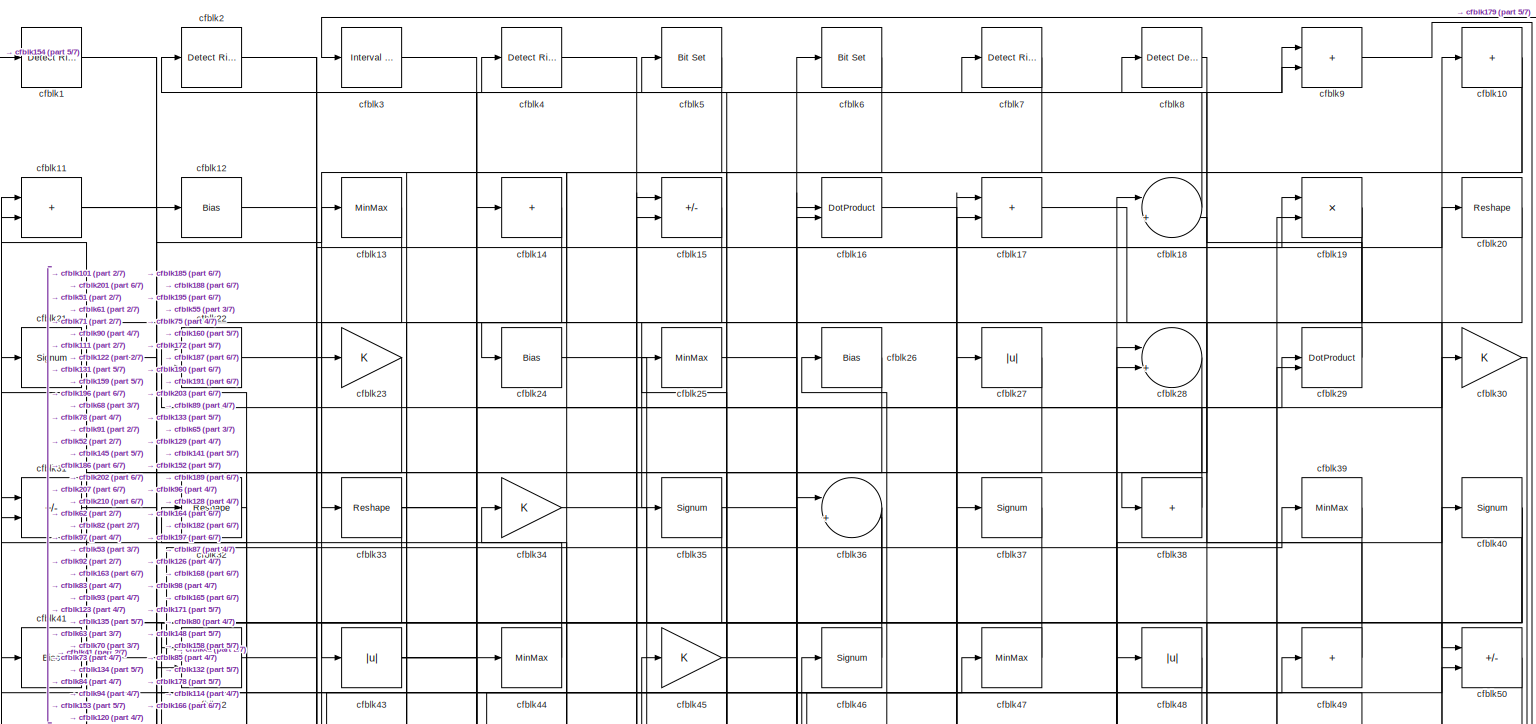
[diagram: root canvas - part 1/7, full width, top band]
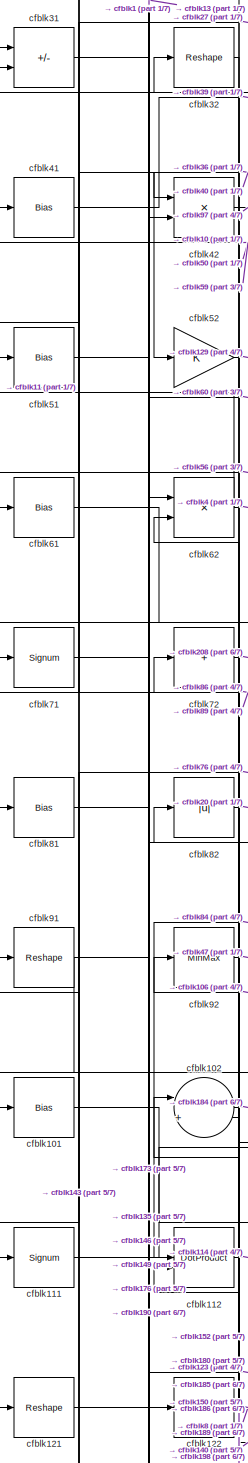
[diagram: root canvas - part 2/7, middle left region]
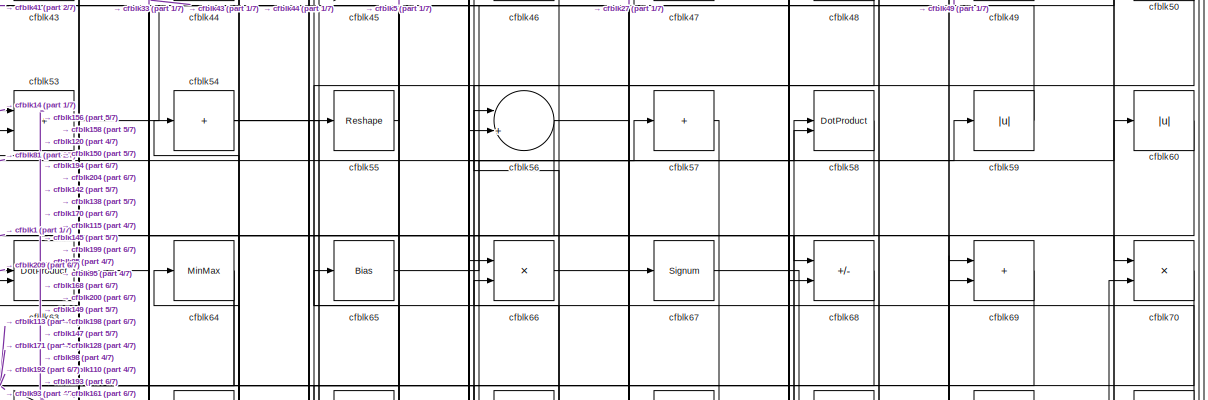
[diagram: root canvas - part 3/7, full width, top band]
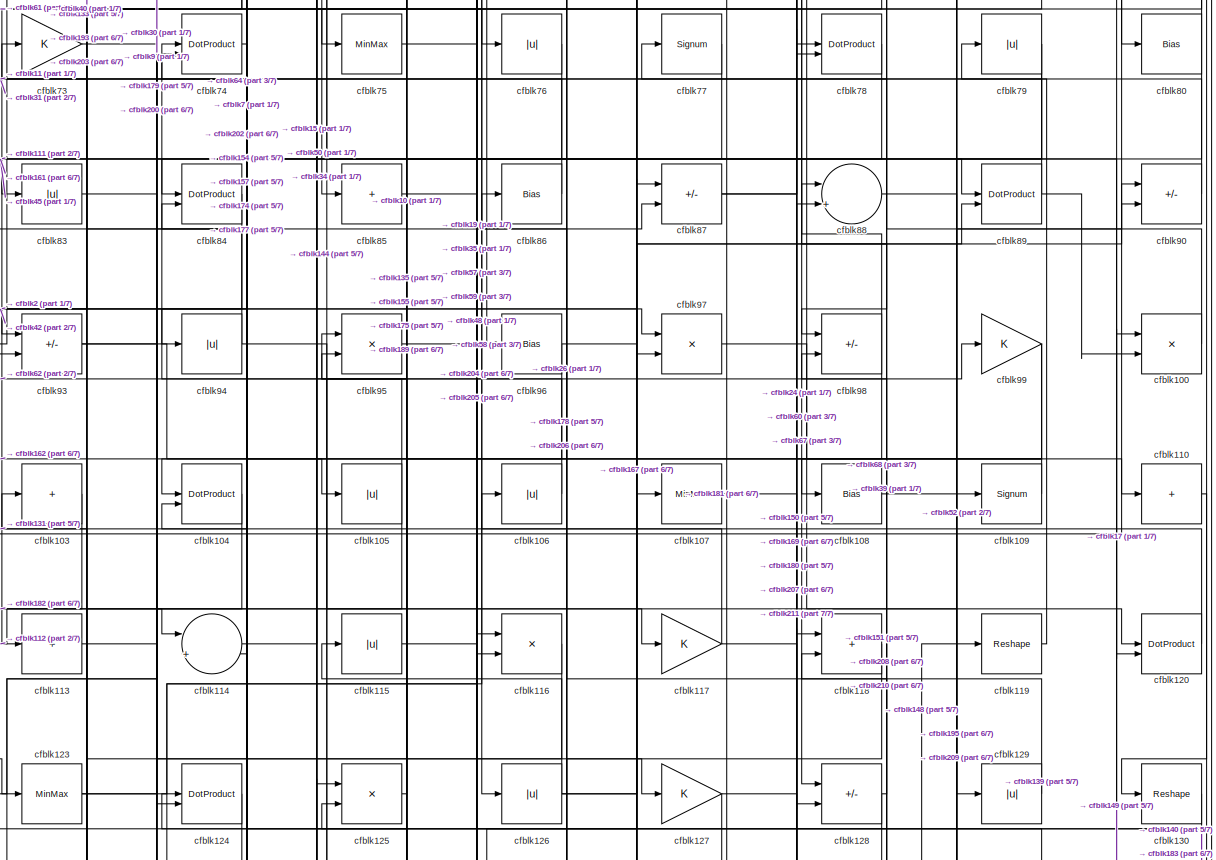
[diagram: root canvas - part 4/7, full width, middle band]
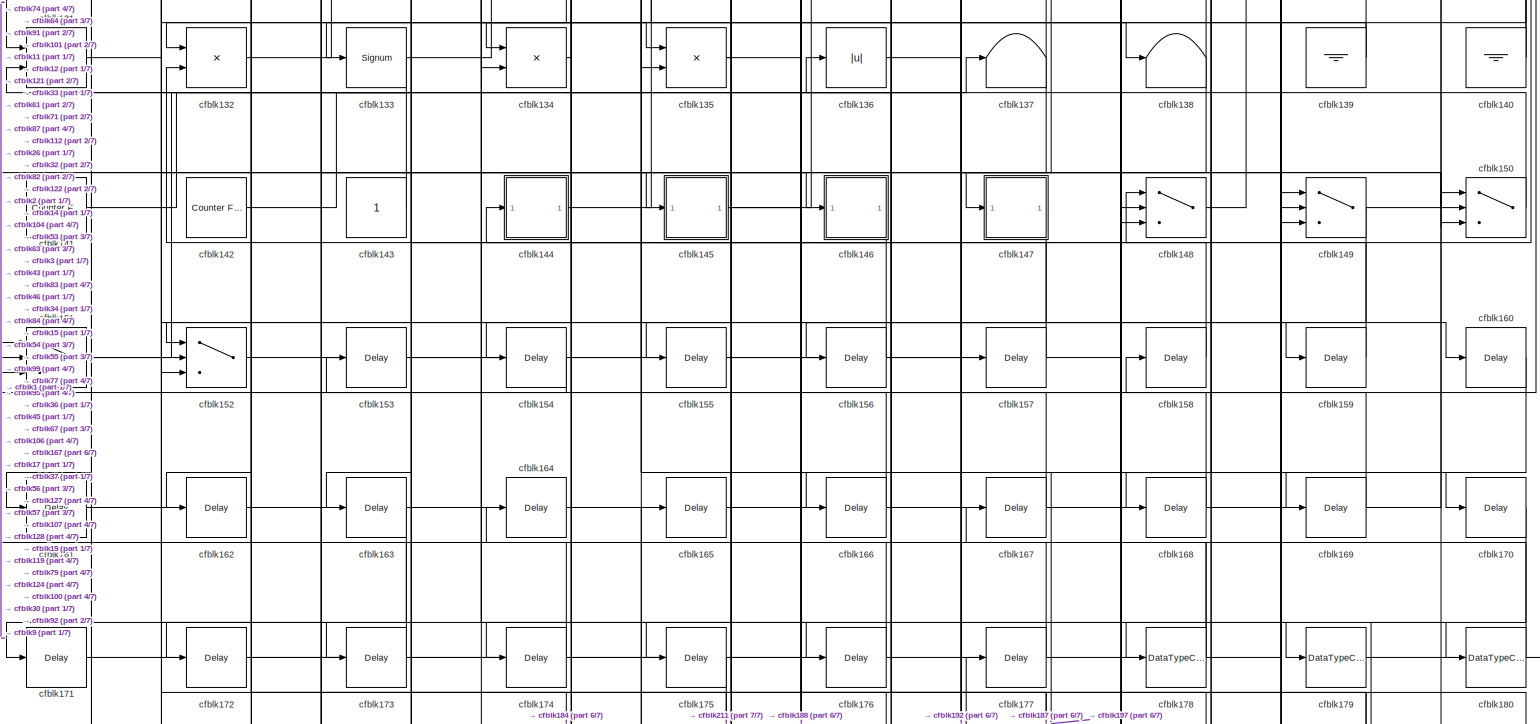
[diagram: root canvas - part 5/7, full width, bottom band]
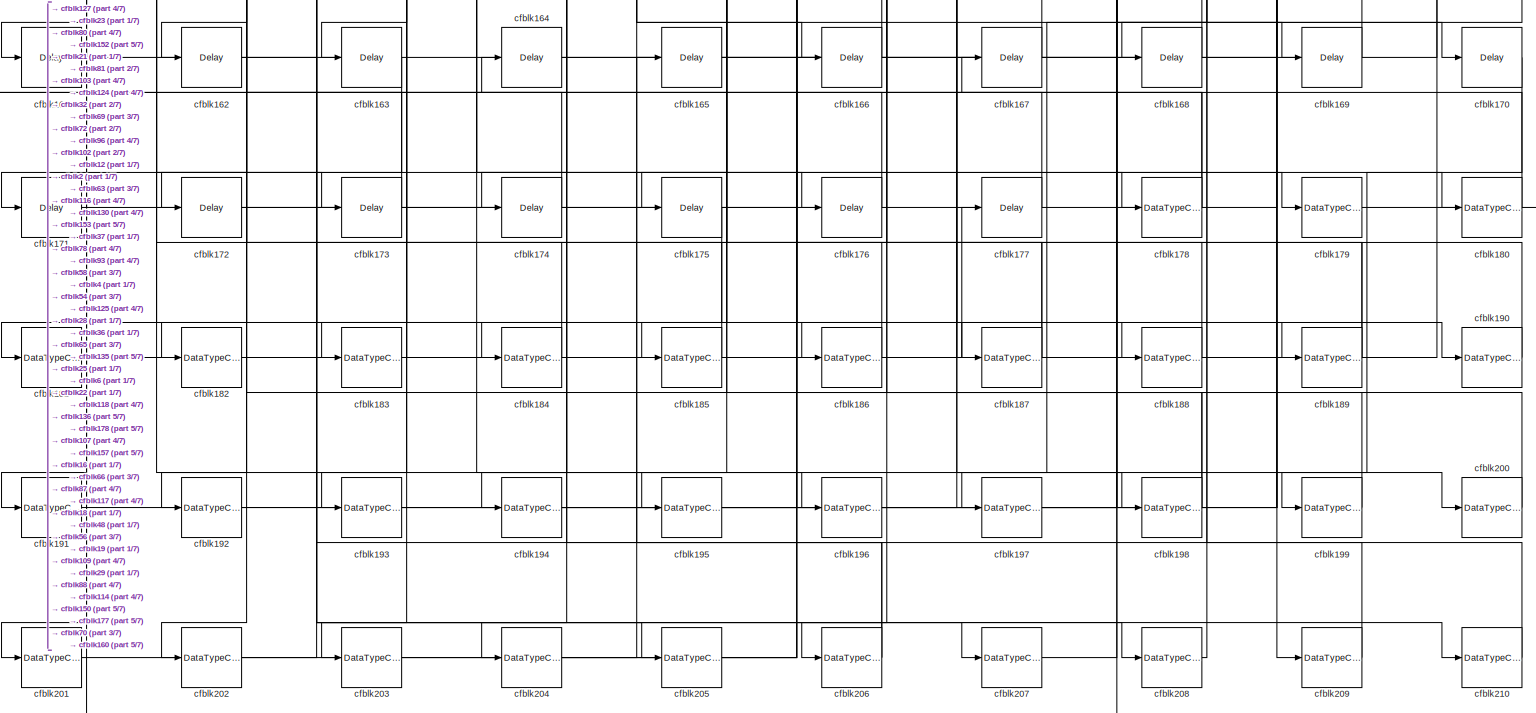
[diagram: root canvas - part 6/7, full width, bottom band]
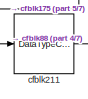
[diagram: root canvas - part 7/7, bottom left region]
MODEL slx_3db3fa56d1fc
KIND model
CONFIG AbsTol = auto
CONFIG EnableMultiTasking = off
CONFIG FixedStep = auto
CONFIG MaxStep = auto
CONFIG MinStep = auto
CONFIG RelTol = 1e-3
CONFIG SampleTimeConstraint = Unconstrained
CONFIG SolverName = VariableStepAuto
CONFIG StartTime = 0.0
CONFIG StopTime = 10.0
BLOCK [Reference] cfblk1  REF=hdlsllib/Logic and Bit
Operations/Detect Rise
Positive
  SourceBlock = hdlsllib/Logic and Bit\nOperations/Detect Rise\nPositive
  SourceType = Detect Rise Positive
BLOCK [Sum] cfblk10
  IconShape = rectangular
  Inputs = +
BLOCK [Product] cfblk100
  Inputs = */
  RndMeth = Zero
  SaturateOnIntegerOverflow = on
BLOCK [Bias] cfblk101
  Bias = 0.0
  SaturateOnIntegerOverflow = off
BLOCK [Sum] cfblk102
  Inputs = |++
BLOCK [Sum] cfblk103
  IconShape = rectangular
  Inputs = +
BLOCK [DotProduct] cfblk104
  OutDataTypeStr = Inherit: Inherit via internal rule
BLOCK [Abs] cfblk105
  SaturateOnIntegerOverflow = off
BLOCK [Abs] cfblk106
  SaturateOnIntegerOverflow = off
BLOCK [MinMax] cfblk107
BLOCK [Bias] cfblk108
  Bias = 0.0
  SaturateOnIntegerOverflow = off
BLOCK [Signum] cfblk109
BLOCK [Sum] cfblk11
  IconShape = rectangular
BLOCK [Sum] cfblk110
  IconShape = rectangular
  Inputs = +
BLOCK [Signum] cfblk111
BLOCK [DotProduct] cfblk112
  OutDataTypeStr = Inherit: Inherit via internal rule
BLOCK [Sum] cfblk113
  IconShape = rectangular
  Inputs = +
BLOCK [Sum] cfblk114
  Inputs = |++
BLOCK [Abs] cfblk115
  SaturateOnIntegerOverflow = off
BLOCK [Product] cfblk116
  Inputs = */
  RndMeth = Zero
  SaturateOnIntegerOverflow = on
BLOCK [Gain] cfblk117
BLOCK [Sum] cfblk118
  IconShape = rectangular
BLOCK [Reshape] cfblk119
BLOCK [Bias] cfblk12
  Bias = 0.0
  SaturateOnIntegerOverflow = off
BLOCK [DotProduct] cfblk120
  OutDataTypeStr = Inherit: Inherit via internal rule
BLOCK [Reshape] cfblk121
BLOCK [Sum] cfblk122
  IconShape = rectangular
  Inputs = +
BLOCK [MinMax] cfblk123
BLOCK [DotProduct] cfblk124
  OutDataTypeStr = Inherit: Inherit via internal rule
BLOCK [Product] cfblk125
  Inputs = */
  RndMeth = Zero
  SaturateOnIntegerOverflow = on
BLOCK [Abs] cfblk126
  SaturateOnIntegerOverflow = off
BLOCK [Gain] cfblk127
BLOCK [Sum] cfblk128
  IconShape = rectangular
  Inputs = +-
BLOCK [Abs] cfblk129
  SaturateOnIntegerOverflow = off
BLOCK [MinMax] cfblk13
BLOCK [Reshape] cfblk130
BLOCK [Sum] cfblk131
  IconShape = rectangular
BLOCK [Product] cfblk132
  Inputs = */
  RndMeth = Zero
  SaturateOnIntegerOverflow = on
BLOCK [Signum] cfblk133
BLOCK [Product] cfblk134
  Inputs = */
  RndMeth = Zero
  SaturateOnIntegerOverflow = on
BLOCK [Product] cfblk135
  Inputs = */
  RndMeth = Zero
  SaturateOnIntegerOverflow = on
BLOCK [Abs] cfblk136
  SaturateOnIntegerOverflow = off
BLOCK [Terminator] cfblk137
BLOCK [Terminator] cfblk138
BLOCK [Ground] cfblk139
BLOCK [Sum] cfblk14
  IconShape = rectangular
  Inputs = +
BLOCK [Ground] cfblk140
BLOCK [Reference] cfblk141  REF=hdlsllib/Sources/Counter
Free-Running
  SourceBlock = hdlsllib/Sources/Counter\nFree-Running
  SourceType = Counter Free-Running
BLOCK [Reference] cfblk142  REF=hdlsllib/Sources/Counter
Free-Running
  SourceBlock = hdlsllib/Sources/Counter\nFree-Running
  SourceType = Counter Free-Running
BLOCK [Constant] cfblk143
  SampleTime = -1
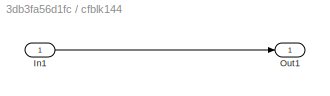
BLOCK [SubSystem] cfblk144
  LibrarySourceBlock = hdlsllib/Ports &\nSubsystems/Subsystem
BLOCK [Inport] cfblk144/In1
BLOCK [Outport] cfblk144/Out1
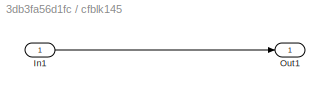
BLOCK [SubSystem] cfblk145
  LibrarySourceBlock = hdlsllib/Ports &\nSubsystems/Subsystem
BLOCK [Inport] cfblk145/In1
BLOCK [Outport] cfblk145/Out1
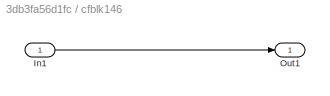
BLOCK [SubSystem] cfblk146
  LibrarySourceBlock = hdlsllib/Ports &\nSubsystems/Subsystem
BLOCK [Inport] cfblk146/In1
BLOCK [Outport] cfblk146/Out1
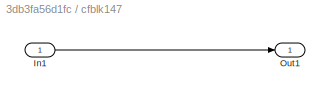
BLOCK [SubSystem] cfblk147
  LibrarySourceBlock = hdlsllib/Ports &\nSubsystems/Subsystem
BLOCK [Inport] cfblk147/In1
BLOCK [Outport] cfblk147/Out1
BLOCK [Switch] cfblk148
  InputSameDT = off
  SaturateOnIntegerOverflow = off
BLOCK [Switch] cfblk149
  InputSameDT = off
  SaturateOnIntegerOverflow = off
BLOCK [Sum] cfblk15
  IconShape = rectangular
  Inputs = +-
BLOCK [Switch] cfblk150
  InputSameDT = off
  SaturateOnIntegerOverflow = off
BLOCK [Switch] cfblk151
  InputSameDT = off
  SaturateOnIntegerOverflow = off
BLOCK [Switch] cfblk152
  InputSameDT = off
  SaturateOnIntegerOverflow = off
BLOCK [Delay] cfblk153
  InputPortMap = u0
  SampleTime = 1
BLOCK [Delay] cfblk154
  InputPortMap = u0
  SampleTime = 1
BLOCK [Delay] cfblk155
  InputPortMap = u0
  SampleTime = 1
BLOCK [Delay] cfblk156
  InputPortMap = u0
  SampleTime = 1
BLOCK [Delay] cfblk157
  InputPortMap = u0
  SampleTime = 1
BLOCK [Delay] cfblk158
  InputPortMap = u0
  SampleTime = 1
BLOCK [Delay] cfblk159
  InputPortMap = u0
  SampleTime = 1
BLOCK [DotProduct] cfblk16
  OutDataTypeStr = Inherit: Inherit via internal rule
BLOCK [Delay] cfblk160
  InputPortMap = u0
  SampleTime = 1
BLOCK [Delay] cfblk161
  InputPortMap = u0
  SampleTime = 1
BLOCK [Delay] cfblk162
  InputPortMap = u0
  SampleTime = 1
BLOCK [Delay] cfblk163
  InputPortMap = u0
  SampleTime = 1
BLOCK [Delay] cfblk164
  InputPortMap = u0
  SampleTime = 1
BLOCK [Delay] cfblk165
  InputPortMap = u0
  SampleTime = 1
BLOCK [Delay] cfblk166
  InputPortMap = u0
  SampleTime = 1
BLOCK [Delay] cfblk167
  InputPortMap = u0
  SampleTime = 1
BLOCK [Delay] cfblk168
  InputPortMap = u0
  SampleTime = 1
BLOCK [Delay] cfblk169
  InputPortMap = u0
  SampleTime = 1
BLOCK [Sum] cfblk17
  IconShape = rectangular
BLOCK [Delay] cfblk170
  InputPortMap = u0
  SampleTime = 1
BLOCK [Delay] cfblk171
  InputPortMap = u0
  SampleTime = 1
BLOCK [Delay] cfblk172
  InputPortMap = u0
  SampleTime = 1
BLOCK [Delay] cfblk173
  InputPortMap = u0
  SampleTime = 1
BLOCK [Delay] cfblk174
  InputPortMap = u0
  SampleTime = 1
BLOCK [Delay] cfblk175
  InputPortMap = u0
  SampleTime = 1
BLOCK [Delay] cfblk176
  InputPortMap = u0
  SampleTime = 1
BLOCK [Delay] cfblk177
  InputPortMap = u0
  SampleTime = 1
BLOCK [DataTypeConversion] cfblk178
  RndMeth = Floor
  SaturateOnIntegerOverflow = off
BLOCK [DataTypeConversion] cfblk179
  OutDataTypeStr = uint8
  RndMeth = Floor
  SaturateOnIntegerOverflow = off
BLOCK [Sum] cfblk18
  Inputs = |++
BLOCK [DataTypeConversion] cfblk180
  OutDataTypeStr = uint8
  RndMeth = Floor
  SaturateOnIntegerOverflow = off
BLOCK [DataTypeConversion] cfblk181
  OutDataTypeStr = uint8
  RndMeth = Floor
  SaturateOnIntegerOverflow = off
BLOCK [DataTypeConversion] cfblk182
  OutDataTypeStr = uint8
  RndMeth = Floor
  SaturateOnIntegerOverflow = off
BLOCK [DataTypeConversion] cfblk183
  OutDataTypeStr = uint8
  RndMeth = Floor
  SaturateOnIntegerOverflow = off
BLOCK [DataTypeConversion] cfblk184
  RndMeth = Floor
  SaturateOnIntegerOverflow = off
BLOCK [DataTypeConversion] cfblk185
  OutDataTypeStr = uint8
  RndMeth = Floor
  SaturateOnIntegerOverflow = off
BLOCK [DataTypeConversion] cfblk186
  OutDataTypeStr = uint8
  RndMeth = Floor
  SaturateOnIntegerOverflow = off
BLOCK [DataTypeConversion] cfblk187
  RndMeth = Floor
  SaturateOnIntegerOverflow = off
BLOCK [DataTypeConversion] cfblk188
  OutDataTypeStr = uint8
  RndMeth = Floor
  SaturateOnIntegerOverflow = off
BLOCK [DataTypeConversion] cfblk189
  RndMeth = Floor
  SaturateOnIntegerOverflow = off
BLOCK [Product] cfblk19
  Inputs = */
  RndMeth = Zero
  SaturateOnIntegerOverflow = on
BLOCK [DataTypeConversion] cfblk190
  OutDataTypeStr = uint8
  RndMeth = Floor
  SaturateOnIntegerOverflow = off
BLOCK [DataTypeConversion] cfblk191
  OutDataTypeStr = uint8
  RndMeth = Floor
  SaturateOnIntegerOverflow = off
BLOCK [DataTypeConversion] cfblk192
  OutDataTypeStr = uint8
  RndMeth = Floor
  SaturateOnIntegerOverflow = off
BLOCK [DataTypeConversion] cfblk193
  OutDataTypeStr = uint8
  RndMeth = Floor
  SaturateOnIntegerOverflow = off
BLOCK [DataTypeConversion] cfblk194
  OutDataTypeStr = uint8
  RndMeth = Floor
  SaturateOnIntegerOverflow = off
BLOCK [DataTypeConversion] cfblk195
  OutDataTypeStr = uint8
  RndMeth = Floor
  SaturateOnIntegerOverflow = off
BLOCK [DataTypeConversion] cfblk196
  OutDataTypeStr = uint8
  RndMeth = Floor
  SaturateOnIntegerOverflow = off
BLOCK [DataTypeConversion] cfblk197
  OutDataTypeStr = uint8
  RndMeth = Floor
  SaturateOnIntegerOverflow = off
BLOCK [DataTypeConversion] cfblk198
  RndMeth = Floor
  SaturateOnIntegerOverflow = off
BLOCK [DataTypeConversion] cfblk199
  OutDataTypeStr = uint8
  RndMeth = Floor
  SaturateOnIntegerOverflow = off
BLOCK [Reference] cfblk2  REF=hdlsllib/Logic and Bit
Operations/Detect Rise
Positive
  SourceBlock = hdlsllib/Logic and Bit\nOperations/Detect Rise\nPositive
  SourceType = Detect Rise Positive
BLOCK [Reshape] cfblk20
BLOCK [DataTypeConversion] cfblk200
  OutDataTypeStr = uint8
  RndMeth = Floor
  SaturateOnIntegerOverflow = off
BLOCK [DataTypeConversion] cfblk201
  OutDataTypeStr = uint8
  RndMeth = Floor
  SaturateOnIntegerOverflow = off
BLOCK [DataTypeConversion] cfblk202
  OutDataTypeStr = uint8
  RndMeth = Floor
  SaturateOnIntegerOverflow = off
BLOCK [DataTypeConversion] cfblk203
  OutDataTypeStr = uint8
  RndMeth = Floor
  SaturateOnIntegerOverflow = off
BLOCK [DataTypeConversion] cfblk204
  OutDataTypeStr = uint8
  RndMeth = Floor
  SaturateOnIntegerOverflow = off
BLOCK [DataTypeConversion] cfblk205
  OutDataTypeStr = uint8
  RndMeth = Floor
  SaturateOnIntegerOverflow = off
BLOCK [DataTypeConversion] cfblk206
  RndMeth = Floor
  SaturateOnIntegerOverflow = off
BLOCK [DataTypeConversion] cfblk207
  OutDataTypeStr = uint8
  RndMeth = Floor
  SaturateOnIntegerOverflow = off
BLOCK [DataTypeConversion] cfblk208
  OutDataTypeStr = uint8
  RndMeth = Floor
  SaturateOnIntegerOverflow = off
BLOCK [DataTypeConversion] cfblk209
  OutDataTypeStr = uint8
  RndMeth = Floor
  SaturateOnIntegerOverflow = off
BLOCK [Signum] cfblk21
BLOCK [DataTypeConversion] cfblk210
  OutDataTypeStr = uint8
  RndMeth = Floor
  SaturateOnIntegerOverflow = off
BLOCK [DataTypeConversion] cfblk211
  OutDataTypeStr = uint8
  RndMeth = Floor
  SaturateOnIntegerOverflow = off
BLOCK [Product] cfblk22
  Inputs = */
  RndMeth = Zero
  SaturateOnIntegerOverflow = on
BLOCK [Gain] cfblk23
BLOCK [Bias] cfblk24
  Bias = 0.0
  SaturateOnIntegerOverflow = off
BLOCK [MinMax] cfblk25
BLOCK [Bias] cfblk26
  Bias = 0.0
  SaturateOnIntegerOverflow = off
BLOCK [Abs] cfblk27
  SaturateOnIntegerOverflow = off
BLOCK [Sum] cfblk28
  Inputs = |++
BLOCK [DotProduct] cfblk29
  OutDataTypeStr = Inherit: Inherit via internal rule
BLOCK [Reference] cfblk3  REF=hdlsllib/Logic and Bit
Operations/Interval Test
  SourceBlock = hdlsllib/Logic and Bit\nOperations/Interval Test
  SourceType = Interval Test
BLOCK [Gain] cfblk30
BLOCK [Sum] cfblk31
  IconShape = rectangular
  Inputs = +-
BLOCK [Reshape] cfblk32
BLOCK [Reshape] cfblk33
BLOCK [Gain] cfblk34
BLOCK [Signum] cfblk35
BLOCK [Sum] cfblk36
  Inputs = |++
BLOCK [Signum] cfblk37
BLOCK [Sum] cfblk38
  IconShape = rectangular
  Inputs = +
BLOCK [MinMax] cfblk39
BLOCK [Reference] cfblk4  REF=hdlsllib/Logic and Bit
Operations/Detect Rise
Positive
  SourceBlock = hdlsllib/Logic and Bit\nOperations/Detect Rise\nPositive
  SourceType = Detect Rise Positive
BLOCK [Signum] cfblk40
BLOCK [Bias] cfblk41
  Bias = 0.0
  SaturateOnIntegerOverflow = off
BLOCK [Product] cfblk42
  Inputs = */
  RndMeth = Zero
  SaturateOnIntegerOverflow = on
BLOCK [Abs] cfblk43
  SaturateOnIntegerOverflow = off
BLOCK [MinMax] cfblk44
BLOCK [Gain] cfblk45
BLOCK [Signum] cfblk46
BLOCK [MinMax] cfblk47
BLOCK [Abs] cfblk48
  SaturateOnIntegerOverflow = off
BLOCK [Sum] cfblk49
  IconShape = rectangular
  Inputs = +
BLOCK [Reference] cfblk5  REF=simulink/Logic and Bit
Operations/Bit Set
  LibrarySourceBlock = hdlsllib/Logic and Bit\nOperations/Bit Set
  SourceBlock = simulink/Logic and Bit\nOperations/Bit Set
  SourceType = Bit Set
BLOCK [Sum] cfblk50
  IconShape = rectangular
  Inputs = +-
BLOCK [Bias] cfblk51
  Bias = 0.0
  SaturateOnIntegerOverflow = off
BLOCK [Gain] cfblk52
BLOCK [Sum] cfblk53
  IconShape = rectangular
BLOCK [Sum] cfblk54
  IconShape = rectangular
  Inputs = +
BLOCK [Reshape] cfblk55
BLOCK [Sum] cfblk56
  Inputs = |++
BLOCK [Sum] cfblk57
  IconShape = rectangular
  Inputs = +
BLOCK [DotProduct] cfblk58
  OutDataTypeStr = Inherit: Inherit via internal rule
BLOCK [Abs] cfblk59
  SaturateOnIntegerOverflow = off
BLOCK [Reference] cfblk6  REF=simulink/Logic and Bit
Operations/Bit Set
  LibrarySourceBlock = hdlsllib/Logic and Bit\nOperations/Bit Set
  SourceBlock = simulink/Logic and Bit\nOperations/Bit Set
  SourceType = Bit Set
BLOCK [Abs] cfblk60
  SaturateOnIntegerOverflow = off
BLOCK [Bias] cfblk61
  Bias = 0.0
  SaturateOnIntegerOverflow = off
BLOCK [Product] cfblk62
  Inputs = */
  RndMeth = Zero
  SaturateOnIntegerOverflow = on
BLOCK [DotProduct] cfblk63
  OutDataTypeStr = Inherit: Inherit via internal rule
BLOCK [MinMax] cfblk64
BLOCK [Bias] cfblk65
  Bias = 0.0
  SaturateOnIntegerOverflow = off
BLOCK [Product] cfblk66
  Inputs = */
  RndMeth = Zero
  SaturateOnIntegerOverflow = on
BLOCK [Signum] cfblk67
BLOCK [Sum] cfblk68
  IconShape = rectangular
  Inputs = +-
BLOCK [Sum] cfblk69
  IconShape = rectangular
BLOCK [Reference] cfblk7  REF=hdlsllib/Logic and Bit
Operations/Detect Rise
Nonnegative
  SourceBlock = hdlsllib/Logic and Bit\nOperations/Detect Rise\nNonnegative
  SourceType = Detect Rise Nonnegative
BLOCK [Product] cfblk70
  Inputs = */
  RndMeth = Zero
  SaturateOnIntegerOverflow = on
BLOCK [Signum] cfblk71
BLOCK [Sum] cfblk72
  IconShape = rectangular
  Inputs = +
BLOCK [Gain] cfblk73
BLOCK [DotProduct] cfblk74
  OutDataTypeStr = Inherit: Inherit via internal rule
BLOCK [MinMax] cfblk75
BLOCK [Abs] cfblk76
  SaturateOnIntegerOverflow = off
BLOCK [Signum] cfblk77
BLOCK [DotProduct] cfblk78
  OutDataTypeStr = Inherit: Inherit via internal rule
BLOCK [Abs] cfblk79
  SaturateOnIntegerOverflow = off
BLOCK [Reference] cfblk8  REF=simulink/Logic and Bit
Operations/Detect
Decrease
  LibrarySourceBlock = hdlsllib/Logic and Bit\nOperations/Detect\nDecrease
  SourceBlock = simulink/Logic and Bit\nOperations/Detect\nDecrease
  SourceType = Detect Decrease
BLOCK [Bias] cfblk80
  Bias = 0.0
  SaturateOnIntegerOverflow = off
BLOCK [Bias] cfblk81
  Bias = 0.0
  SaturateOnIntegerOverflow = off
BLOCK [Abs] cfblk82
  SaturateOnIntegerOverflow = off
BLOCK [Abs] cfblk83
  SaturateOnIntegerOverflow = off
BLOCK [DotProduct] cfblk84
  OutDataTypeStr = Inherit: Inherit via internal rule
BLOCK [Sum] cfblk85
  IconShape = rectangular
  Inputs = +
BLOCK [Bias] cfblk86
  Bias = 0.0
  SaturateOnIntegerOverflow = off
BLOCK [Sum] cfblk87
  IconShape = rectangular
  Inputs = +-
BLOCK [Sum] cfblk88
  Inputs = |++
BLOCK [DotProduct] cfblk89
  OutDataTypeStr = Inherit: Inherit via internal rule
BLOCK [Sum] cfblk9
  IconShape = rectangular
BLOCK [Sum] cfblk90
  IconShape = rectangular
  Inputs = +-
BLOCK [Reshape] cfblk91
BLOCK [MinMax] cfblk92
BLOCK [Sum] cfblk93
  IconShape = rectangular
  Inputs = +-
BLOCK [Abs] cfblk94
  SaturateOnIntegerOverflow = off
BLOCK [Product] cfblk95
  Inputs = */
  RndMeth = Zero
  SaturateOnIntegerOverflow = on
BLOCK [Bias] cfblk96
  Bias = 0.0
  SaturateOnIntegerOverflow = off
BLOCK [Product] cfblk97
  Inputs = */
  RndMeth = Zero
  SaturateOnIntegerOverflow = on
BLOCK [Sum] cfblk98
  IconShape = rectangular
  Inputs = +-
BLOCK [Gain] cfblk99
LINE cfblk100:1 -> cfblk77:1
NET cfblk101:1 -> cfblk149:1, cfblk176:1
LINE cfblk102:1 -> cfblk184:1
LINE cfblk103:1 -> cfblk182:1
LINE cfblk104:1 -> cfblk133:1
NET cfblk105:1 -> cfblk124:2, cfblk74:2
LINE cfblk106:1 -> cfblk62:2
LINE cfblk107:1 -> cfblk180:1
LINE cfblk108:1 -> cfblk90:1
LINE cfblk109:1 -> cfblk104:1
NET cfblk10:1 -> cfblk75:1, cfblk83:1
LINE cfblk110:1 -> cfblk130:1
NET cfblk111:1 -> cfblk10:1, cfblk50:2
LINE cfblk112:1 -> cfblk114:1
LINE cfblk113:1 -> cfblk127:1
LINE cfblk114:1 -> cfblk15:1
LINE cfblk115:1 -> cfblk59:1
LINE cfblk116:1 -> cfblk203:1
NET cfblk117:1 -> cfblk169:1, cfblk86:1
LINE cfblk118:1 -> cfblk206:1
LINE cfblk119:1 -> cfblk79:1
NET cfblk11:1 -> cfblk159:1, cfblk78:2
LINE cfblk120:1 -> cfblk64:1
LINE cfblk121:1 -> cfblk135:2
NET cfblk122:1 -> cfblk150:3, cfblk8:1
NET cfblk123:1 -> cfblk30:1, cfblk96:1
LINE cfblk124:1 -> cfblk202:1
LINE cfblk125:1 -> cfblk95:1
NET cfblk126:1 -> cfblk115:1, cfblk89:2, cfblk90:2
NET cfblk127:1 -> cfblk150:2, cfblk181:1
NET cfblk128:1 -> cfblk151:3, cfblk98:2
LINE cfblk129:1 -> cfblk26:1
LINE cfblk12:1 -> cfblk207:1
LINE cfblk130:1 -> cfblk183:1
LINE cfblk131:1 -> cfblk12:1
LINE cfblk132:1 -> cfblk14:1
NET cfblk133:1 -> cfblk131:2, cfblk46:1
LINE cfblk134:1 -> cfblk34:1
NET cfblk135:1 -> cfblk188:1, cfblk95:2
LINE cfblk136:1 -> cfblk148:3
NET cfblk139:1 -> cfblk124:1, cfblk134:1
LINE cfblk13:1 -> cfblk51:1
NET cfblk140:1 -> cfblk74:1, cfblk92:1
LINE cfblk141:1 -> cfblk17:1
LINE cfblk142:1 -> cfblk55:1
LINE cfblk143:1 -> cfblk91:1
LINE cfblk144/In1:1 -> cfblk144/Out1:1
LINE cfblk144:1 -> cfblk99:1
LINE cfblk145/In1:1 -> cfblk145/Out1:1
NET cfblk145:1 -> cfblk56:2, cfblk67:1
LINE cfblk146/In1:1 -> cfblk146/Out1:1
LINE cfblk146:1 -> cfblk144:1
LINE cfblk147/In1:1 -> cfblk147/Out1:1
LINE cfblk147:1 -> cfblk172:1
LINE cfblk148:1 -> cfblk119:1
NET cfblk149:1 -> cfblk100:1, cfblk156:1
LINE cfblk14:1 -> cfblk53:1
LINE cfblk150:1 -> cfblk54:1
NET cfblk151:1 -> cfblk137:1, cfblk87:2
LINE cfblk152:1 -> cfblk37:1
LINE cfblk153:1 -> cfblk15:2
LINE cfblk154:1 -> cfblk1:1
LINE cfblk155:1 -> cfblk148:2
LINE cfblk156:1 -> cfblk63:2
LINE cfblk157:1 -> cfblk104:2
LINE cfblk158:1 -> cfblk53:2
LINE cfblk159:1 -> cfblk132:2
LINE cfblk15:1 -> cfblk43:1
LINE cfblk160:1 -> cfblk197:1
LINE cfblk161:1 -> cfblk70:2
LINE cfblk162:1 -> cfblk205:1
LINE cfblk163:1 -> cfblk191:1
LINE cfblk164:1 -> cfblk18:1
LINE cfblk165:1 -> cfblk29:2
LINE cfblk166:1 -> cfblk22:2
LINE cfblk167:1 -> cfblk87:1
LINE cfblk168:1 -> cfblk56:1
LINE cfblk169:1 -> cfblk114:2
LINE cfblk16:1 -> cfblk189:1
LINE cfblk170:1 -> cfblk199:1
LINE cfblk171:1 -> cfblk19:2
LINE cfblk172:1 -> cfblk36:1
LINE cfblk173:1 -> cfblk112:2
LINE cfblk174:1 -> cfblk151:2
LINE cfblk175:1 -> cfblk211:1
LINE cfblk176:1 -> cfblk151:1
LINE cfblk177:1 -> cfblk84:2
NET cfblk178:1 -> cfblk106:1, cfblk167:1
LINE cfblk179:1 -> cfblk3:1
LINE cfblk17:1 -> cfblk80:1
LINE cfblk180:1 -> cfblk82:1
LINE cfblk181:1 -> cfblk107:1
LINE cfblk182:1 -> cfblk48:1
LINE cfblk183:1 -> cfblk103:1
NET cfblk184:1 -> cfblk150:1, cfblk152:2, cfblk177:1
LINE cfblk185:1 -> cfblk102:1
LINE cfblk186:1 -> cfblk102:2
NET cfblk187:1 -> cfblk136:1, cfblk153:1
LINE cfblk188:1 -> cfblk25:1
NET cfblk189:1 -> cfblk125:2, cfblk32:1
LINE cfblk18:1 -> cfblk7:1
LINE cfblk190:1 -> cfblk16:1
LINE cfblk191:1 -> cfblk16:2
LINE cfblk192:1 -> cfblk157:1
LINE cfblk193:1 -> cfblk69:1
LINE cfblk194:1 -> cfblk69:2
LINE cfblk195:1 -> cfblk109:1
LINE cfblk196:1 -> cfblk28:1
LINE cfblk197:1 -> cfblk28:2
NET cfblk198:1 -> cfblk65:1, cfblk72:1
LINE cfblk199:1 -> cfblk66:1
NET cfblk19:1 -> cfblk134:2, cfblk168:1
NET cfblk1:1 -> cfblk122:1, cfblk50:1, cfblk68:1
LINE cfblk200:1 -> cfblk66:2
LINE cfblk201:1 -> cfblk165:1
LINE cfblk202:1 -> cfblk23:1
LINE cfblk203:1 -> cfblk6:1
LINE cfblk204:1 -> cfblk116:1
LINE cfblk205:1 -> cfblk116:2
NET cfblk206:1 -> cfblk125:1, cfblk164:1
LINE cfblk207:1 -> cfblk118:1
LINE cfblk208:1 -> cfblk118:2
LINE cfblk209:1 -> cfblk63:1
LINE cfblk20:1 -> cfblk35:1
LINE cfblk210:1 -> cfblk88:1
LINE cfblk211:1 -> cfblk88:2
LINE cfblk21:1 -> cfblk196:1
LINE cfblk22:1 -> cfblk210:1
LINE cfblk23:1 -> cfblk201:1
LINE cfblk24:1 -> cfblk128:2
LINE cfblk25:1 -> cfblk187:1
LINE cfblk26:1 -> cfblk132:1
LINE cfblk27:1 -> cfblk61:1
LINE cfblk28:1 -> cfblk195:1
LINE cfblk29:1 -> cfblk2:1
NET cfblk2:1 -> cfblk145:1, cfblk186:1, cfblk97:2
LINE cfblk30:1 -> cfblk148:1
LINE cfblk31:1 -> cfblk123:1
LINE cfblk32:1 -> cfblk152:1
NET cfblk33:1 -> cfblk152:3, cfblk29:1, cfblk68:2
LINE cfblk34:1 -> cfblk120:2
NET cfblk35:1 -> cfblk89:1, cfblk94:1
NET cfblk36:1 -> cfblk185:1, cfblk52:1
LINE cfblk37:1 -> cfblk163:1
LINE cfblk38:1 -> cfblk22:1
LINE cfblk39:1 -> cfblk98:1
LINE cfblk3:1 -> cfblk178:1
NET cfblk40:1 -> cfblk101:1, cfblk71:1, cfblk93:1
LINE cfblk41:1 -> cfblk39:1
LINE cfblk42:1 -> cfblk97:1
NET cfblk43:1 -> cfblk135:1, cfblk70:1, cfblk9:2
LINE cfblk44:1 -> cfblk21:1
LINE cfblk45:1 -> cfblk160:1
LINE cfblk46:1 -> cfblk36:2
LINE cfblk47:1 -> cfblk42:1
LINE cfblk48:1 -> cfblk126:1
LINE cfblk49:1 -> cfblk18:2
LINE cfblk4:1 -> cfblk166:1
LINE cfblk50:1 -> cfblk85:1
LINE cfblk51:1 -> cfblk62:1
LINE cfblk52:1 -> cfblk129:1
LINE cfblk53:1 -> cfblk49:1
NET cfblk54:1 -> cfblk138:1, cfblk170:1
LINE cfblk55:1 -> cfblk5:1
NET cfblk56:1 -> cfblk149:3, cfblk81:1
LINE cfblk57:1 -> cfblk147:1
LINE cfblk58:1 -> cfblk194:1
LINE cfblk59:1 -> cfblk41:1
LINE cfblk5:1 -> cfblk24:1
LINE cfblk60:1 -> cfblk128:1
NET cfblk61:1 -> cfblk173:1, cfblk76:1
NET cfblk62:1 -> cfblk11:1, cfblk4:1
LINE cfblk63:1 -> cfblk44:1
NET cfblk64:1 -> cfblk113:1, cfblk171:1
LINE cfblk65:1 -> cfblk27:1
LINE cfblk66:1 -> cfblk198:1
LINE cfblk67:1 -> cfblk110:1
LINE cfblk68:1 -> cfblk93:2
LINE cfblk69:1 -> cfblk192:1
LINE cfblk6:1 -> cfblk33:1
LINE cfblk70:1 -> cfblk204:1
NET cfblk71:1 -> cfblk146:1, cfblk42:2
LINE cfblk72:1 -> cfblk208:1
LINE cfblk73:1 -> cfblk9:1
LINE cfblk74:1 -> cfblk131:1
LINE cfblk75:1 -> cfblk19:1
LINE cfblk76:1 -> cfblk111:1
LINE cfblk77:1 -> cfblk155:1
LINE cfblk78:1 -> cfblk193:1
NET cfblk79:1 -> cfblk149:2, cfblk154:1
LINE cfblk7:1 -> cfblk84:1
NET cfblk80:1 -> cfblk161:1, cfblk45:1
NET cfblk81:1 -> cfblk190:1, cfblk60:1
LINE cfblk82:1 -> cfblk20:1
LINE cfblk83:1 -> cfblk179:1
LINE cfblk84:1 -> cfblk112:1
LINE cfblk85:1 -> cfblk57:1
LINE cfblk86:1 -> cfblk31:1
NET cfblk87:1 -> cfblk40:1, cfblk78:1
LINE cfblk88:1 -> cfblk209:1
NET cfblk89:1 -> cfblk100:2, cfblk31:2
LINE cfblk8:1 -> cfblk38:1
LINE cfblk90:1 -> cfblk11:2
NET cfblk91:1 -> cfblk121:1, cfblk13:1
LINE cfblk92:1 -> cfblk47:1
NET cfblk93:1 -> cfblk105:1, cfblk200:1
NET cfblk94:1 -> cfblk117:1, cfblk73:1
LINE cfblk95:1 -> cfblk58:1
NET cfblk96:1 -> cfblk162:1, cfblk17:2
LINE cfblk97:1 -> cfblk120:1
NET cfblk98:1 -> cfblk108:1, cfblk58:2
NET cfblk99:1 -> cfblk174:1, cfblk175:1
LINE cfblk9:1 -> cfblk158:1
note: NET lines group one-source signal fan-out (src -> all destinations, sorted); 1:1 wires keep LINE
